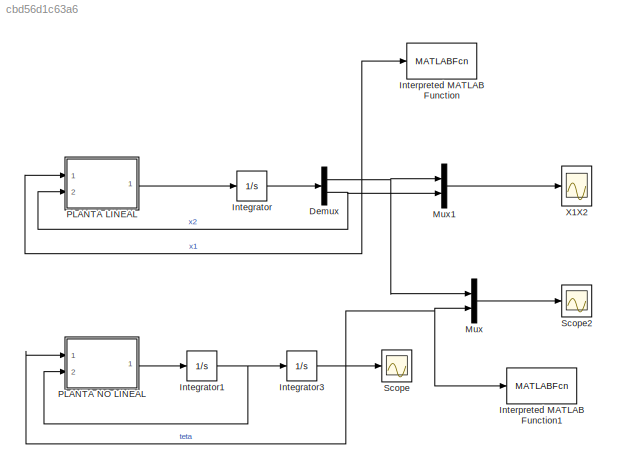
MODEL slx_cbd56d1c63a6
KIND model
CONFIG AbsTol = auto
CONFIG EnableMultiTasking = off
CONFIG FixedStep = 0.01
CONFIG MaxStep = auto
CONFIG MinStep = auto
CONFIG RelTol = 1e-3
CONFIG SampleTimeConstraint = Unconstrained
CONFIG SolverName = ode4
CONFIG StartTime = 0.0
CONFIG StopTime = 2.5
BLOCK [Demux] Demux
  Outputs = 2
  Ports = [1, 2]
BLOCK [Integrator] Integrator
  InitialCondition = [pi/4 0]
  Ports = [1, 1]
BLOCK [Integrator] Integrator1
  Ports = [1, 1]
BLOCK [Integrator] Integrator3
  InitialCondition = 0.10
  Ports = [1, 1]
BLOCK [MATLABFcn] Interpreted MATLAB Function
  MATLABFcn = animacion_lineal
  OutputDimensions = 0
  Ports = [1]
BLOCK [MATLABFcn] Interpreted MATLAB Function1
  Commented = on
  MATLABFcn = animacion_lineal
  OutputDimensions = 0
  Ports = [1]
BLOCK [Mux] Mux
  DisplayOption = bar
  Inputs = 2
  Ports = [2, 1]
BLOCK [Mux] Mux1
  DisplayOption = bar
  Inputs = 2
  Ports = [2, 1]
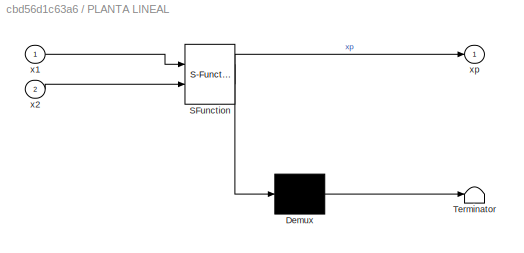
BLOCK [SubSystem] PLANTA LINEAL
  ErrorFcn = Stateflow.Translate.translate
  PermitHierarchicalResolution = ExplicitOnly
  Ports = [2, 1]
  RequestExecContextInheritance = off
  SFBlockType = MATLAB Function
  TreatAsAtomicUnit = on
BLOCK [Demux] PLANTA LINEAL/ Demux 
  Outputs = 1
  Ports = [1, 1]
BLOCK [S-Function] PLANTA LINEAL/ SFunction 
  EnableBusSupport = on
  FunctionName = sf_sfun
  PortCounts = [2 2]
  Ports = [2, 2]
  SFcnIsStateOwnerBlock = off
  SFunctionDeploymentMode = off
  Tag = Stateflow S-Function 1
BLOCK [Terminator] PLANTA LINEAL/ Terminator 
BLOCK [Inport] PLANTA LINEAL/x1
BLOCK [Inport] PLANTA LINEAL/x2
  Port = 2
BLOCK [Outport] PLANTA LINEAL/xp
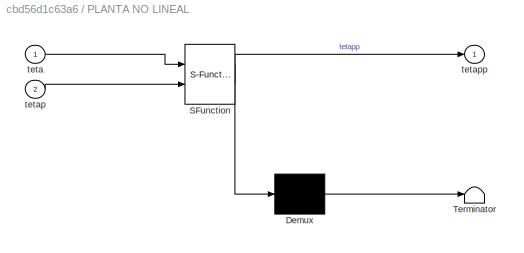
BLOCK [SubSystem] PLANTA NO LINEAL
  ErrorFcn = Stateflow.Translate.translate
  PermitHierarchicalResolution = ExplicitOnly
  Ports = [2, 1]
  RequestExecContextInheritance = off
  SFBlockType = MATLAB Function
  TreatAsAtomicUnit = on
BLOCK [Demux] PLANTA NO LINEAL/ Demux 
  Outputs = 1
  Ports = [1, 1]
BLOCK [S-Function] PLANTA NO LINEAL/ SFunction 
  EnableBusSupport = on
  FunctionName = sf_sfun
  PortCounts = [2 2]
  Ports = [2, 2]
  SFcnIsStateOwnerBlock = off
  SFunctionDeploymentMode = off
  Tag = Stateflow S-Function 3
BLOCK [Terminator] PLANTA NO LINEAL/ Terminator 
BLOCK [Inport] PLANTA NO LINEAL/teta
BLOCK [Inport] PLANTA NO LINEAL/tetap
  Port = 2
BLOCK [Outport] PLANTA NO LINEAL/tetapp
BLOCK [Scope] Scope
  Floating = off
  NumInputPorts = 1
  Ports = [1]
  ScopeSpecificationString = Simulink.scopes.TimeScopeBlockCfg('CurrentConfiguration', extmgr.ConfigurationSet(extmgr.Configuration('Core','General UI',true),extmgr.Configuration('Core','Source UI',true),extmgr.Configuration('Sources','WiredSimulink',true,'DataLoggingVariableName','ScopeData1'),extmgr.Configuration('Visuals','Time Domain',true,'SerializedDisplays',{struct('MinYLimReal','-0.02131','MaxYLimReal','0.16903','YLab...<+1368ch>
BLOCK [Scope] Scope2
  Floating = off
  NumInputPorts = 1
  Ports = [1]
  ScopeSpecificationString = Simulink.scopes.TimeScopeBlockCfg('CurrentConfiguration', extmgr.ConfigurationSet(extmgr.Configuration('Core','General UI',true),extmgr.Configuration('Core','Source UI',true),extmgr.Configuration('Sources','WiredSimulink',true,'DataLoggingVariableName','ScopeData1'),extmgr.Configuration('Visuals','Time Domain',true,'SerializedDisplays',{struct('MinYLimReal','-0.11156','MaxYLimReal','0.88506','YLab...<+1443ch>
BLOCK [Scope] X1X2
  Floating = off
  NumInputPorts = 1
  Ports = [1]
  ScopeSpecificationString = Simulink.scopes.TimeScopeBlockCfg('CurrentConfiguration', extmgr.ConfigurationSet(extmgr.Configuration('Core','General UI',true),extmgr.Configuration('Core','Source UI',true),extmgr.Configuration('Sources','WiredSimulink',true,'DataLoggingVariableName','ScopeData2'),extmgr.Configuration('Visuals','Time Domain',true,'SerializedDisplays',{struct('MinYLimReal','-3.8432','MaxYLimReal','1.29969','YLabe...<+1405ch>
NET Demux:1 -> Interpreted MATLAB Function:1, Mux1:1, Mux:1, PLANTA LINEAL:1
NET Demux:2 -> Mux1:2, PLANTA LINEAL:2
NET Integrator1:1 -> Integrator3:1, PLANTA NO LINEAL:2
NET Integrator3:1 -> Interpreted MATLAB Function1:1, Mux:2, PLANTA NO LINEAL:1, Scope:1
LINE Integrator:1 -> Demux:1
LINE Mux1:1 -> X1X2:1
LINE Mux:1 -> Scope2:1
LINE PLANTA LINEAL:1 -> Integrator:1
LINE PLANTA NO LINEAL:1 -> Integrator1:1
note: NET lines group one-source signal fan-out (src -> all destinations, sorted); 1:1 wires keep LINE
CHART PLANTA LINEAL states=1 transitions=1
  STATE_LABEL 'eML_blk_kernel()'
  STATE_LABEL 'SCRIPT:\nfunction xp = fcn(x1, x2)\n% Parametros\nm = 1;\nL = 1;\ng = 9.81;\n\n% Matrices\nA = [0, 1; g/L, 0];\nB = [0; 1/(m * L^2)];\n\n% Vector\nx = [x1; x2];\n\n% Control\nk = [109.81, 16];\nu = -k * x;\n\n% Planta\nxp = A * x + B * u;\n\n'
CHART PLANTA NO LINEAL states=1 transitions=1
  STATE_LABEL 'eML_blk_kernel()'
  STATE_LABEL 'SCRIPT:\nfunction tetapp = fcn(teta, tetap)\n% PARAMETROS\nm = 1;\nL = 1;\ng = 9.81;\n\n% Control\nk = [109.81 16];\nx = [teta; tetap];\n\nu = -k*x;\nT = u;\n\n% Planta\ntetapp = 1 / (m * L^2) * T + g/L * sin(teta);\n'
CHART  states=0 transitions=0
CHART  states=0 transitions=0
